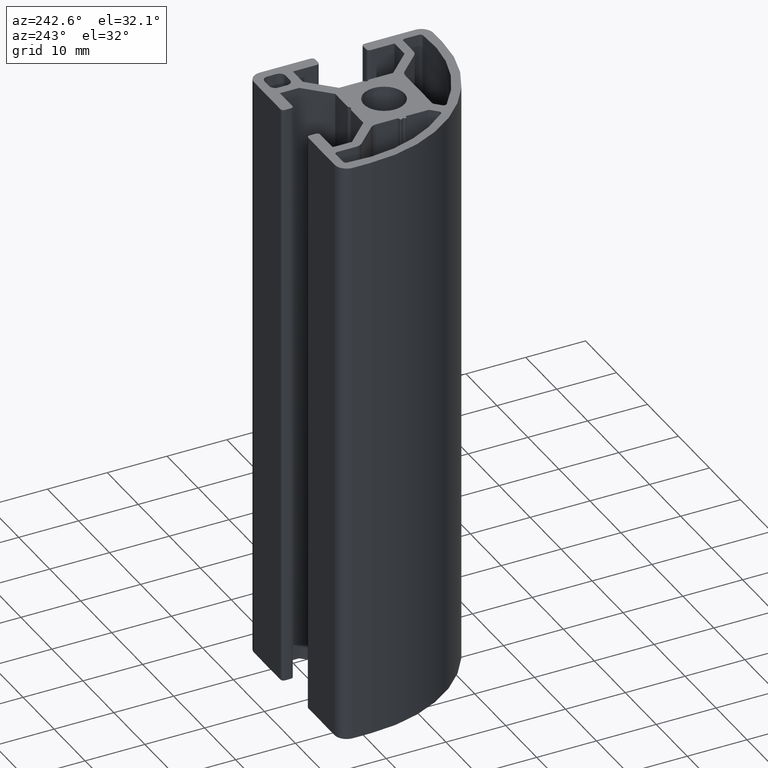
[diagram: clean part render]
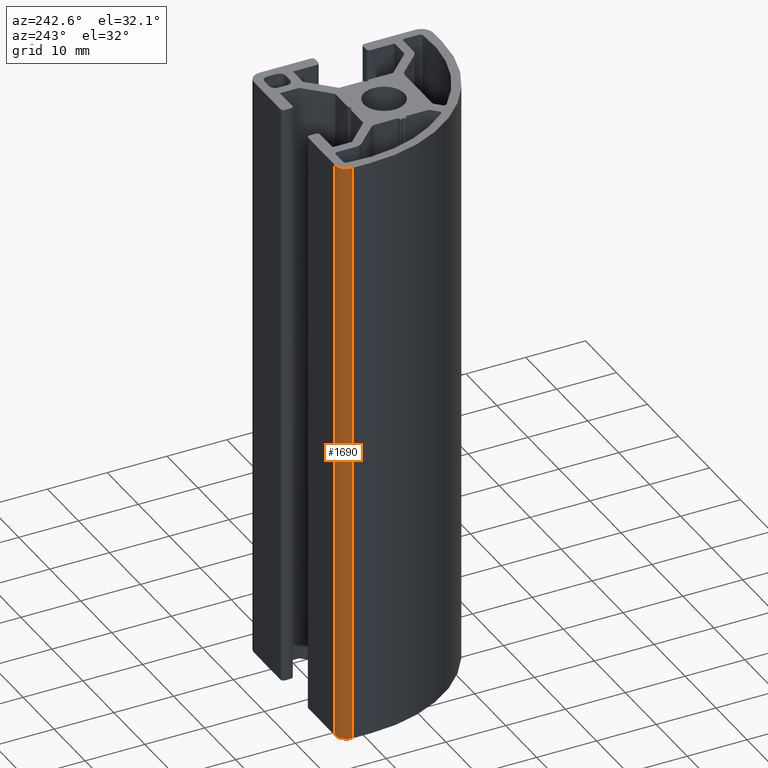
[diagram: same view with one face highlighted and labeled with its STEP entity id]
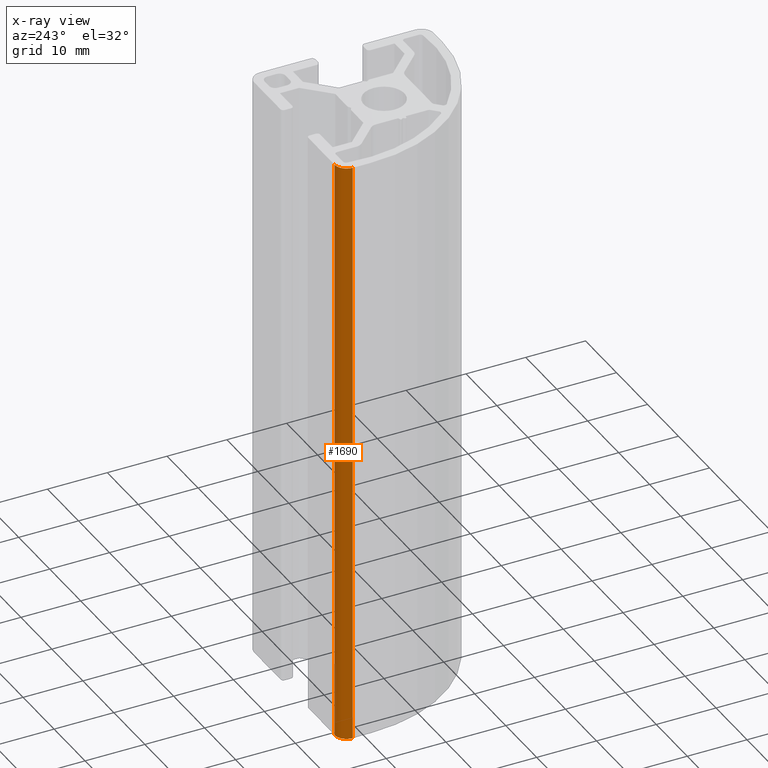
[diagram: x-ray of the same camera — body ghosted, the highlighted face saturated]
A machine part, auxiliary view. The second image highlights one B-rep face of the part: STEP entity #1690.
The next image is the same camera in x-ray: the body ghosted, the highlighted face saturated — about 0% of this face is hidden behind the body in this view.
In plain terms, the highlighted cylindrical surface (edge-blend (fillet) strip) has radius 2 mm, axis along (0, 0, 1).
Its self-contained STEP definition (entity closure, byte-faithful):
#157=FACE_OUTER_BOUND('',#246,.T.);
#246=EDGE_LOOP('',(#1489,#1490,#1491,#1492));
#414=LINE('',#2776,#593);
#417=LINE('',#2782,#596);
#593=VECTOR('',#2276,100.);
#596=VECTOR('',#2281,100.);
#672=CIRCLE('',#1834,2.00000000847673);
#675=CIRCLE('',#1842,2.00000000847673);
#828=VERTEX_POINT('',#2773);
#829=VERTEX_POINT('',#2775);
#830=VERTEX_POINT('',#2779);
#831=VERTEX_POINT('',#2781);
#1062=EDGE_CURVE('',#829,#828,#414,.T.);
#1065=EDGE_CURVE('',#830,#831,#417,.T.);
#1077=EDGE_CURVE('',#828,#831,#672,.T.);
#1084=EDGE_CURVE('',#829,#830,#675,.T.);
#1489=ORIENTED_EDGE('',*,*,#1077,.T.);
#1490=ORIENTED_EDGE('',*,*,#1065,.F.);
#1491=ORIENTED_EDGE('',*,*,#1084,.F.);
#1492=ORIENTED_EDGE('',*,*,#1062,.T.);
#1607=CYLINDRICAL_SURFACE('',#1841,2.00000000847673);
#1690=ADVANCED_FACE('',(#157),#1607,.T.);
#1834=AXIS2_PLACEMENT_3D('',#2803,#2301,#2302);
#1841=AXIS2_PLACEMENT_3D('',#2816,#2319,#2320);
#1842=AXIS2_PLACEMENT_3D('',#2817,#2321,#2322);
#2276=DIRECTION('',(0.,0.,1.));
#2281=DIRECTION('',(0.,0.,1.));
#2301=DIRECTION('center_axis',(0.,0.,-1.));
#2302=DIRECTION('ref_axis',(0.,-1.,0.));
#2319=DIRECTION('center_axis',(0.,0.,1.));
#2320=DIRECTION('ref_axis',(0.,-1.,0.));
#2321=DIRECTION('center_axis',(0.,0.,-1.));
#2322=DIRECTION('ref_axis',(0.,-1.,0.));
#2773=CARTESIAN_POINT('',(-15.,12.9999999870676,100.));
#2775=CARTESIAN_POINT('',(-15.,12.9999999870676,0.));
#2776=CARTESIAN_POINT('',(-15.,12.9999999870676,0.));
#2779=CARTESIAN_POINT('',(-12.9999999915233,14.9999999963232,0.));
#2781=CARTESIAN_POINT('',(-12.9999999915233,14.9999999963232,100.));
#2782=CARTESIAN_POINT('',(-12.9999999915233,14.9999999963232,0.));
#2803=CARTESIAN_POINT('Origin',(-12.9999999915233,12.9999999878465,100.));
#2816=CARTESIAN_POINT('Origin',(-12.9999999915233,12.9999999878465,0.));
#2817=CARTESIAN_POINT('Origin',(-12.9999999915233,12.9999999878465,0.));